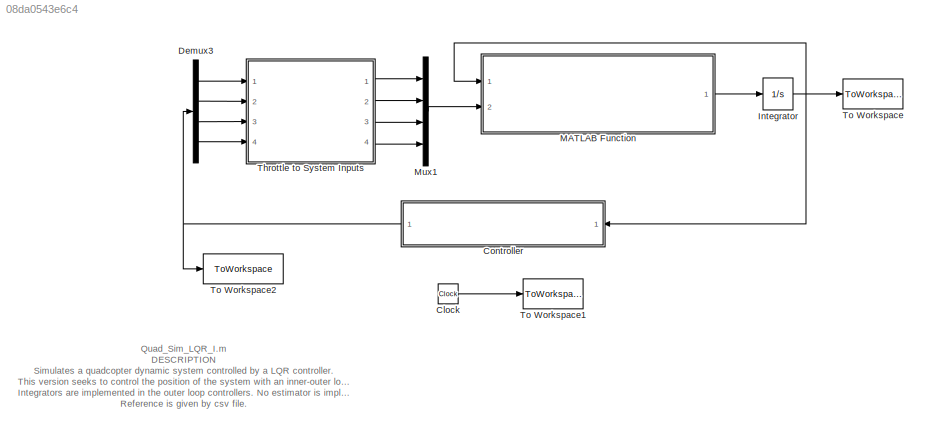
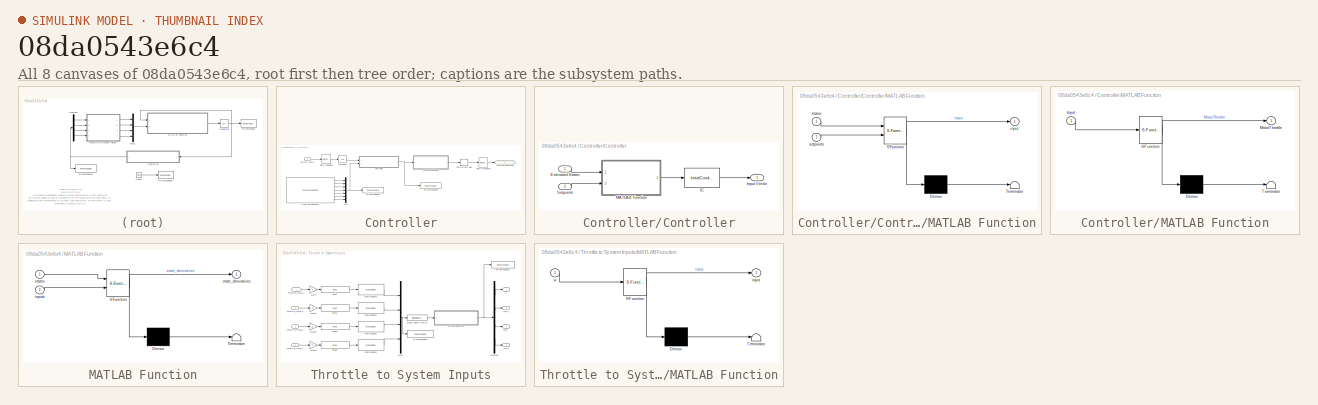
[diagram: thumbnail index - all 8 canvases of the model, root first then tree order]
MODEL slx_08da0543e6c4
KIND model
CONFIG AbsTol = auto
CONFIG EnableMultiTasking = off
CONFIG FixedStep = Ts
CONFIG MaxStep = auto
CONFIG MinStep = auto
CONFIG RelTol = 1e-3
CONFIG SampleTimeConstraint = Unconstrained
CONFIG SolverName = ode4
CONFIG StartTime = 0.0
CONFIG StopTime = Tfin
BLOCK [Clock] Clock
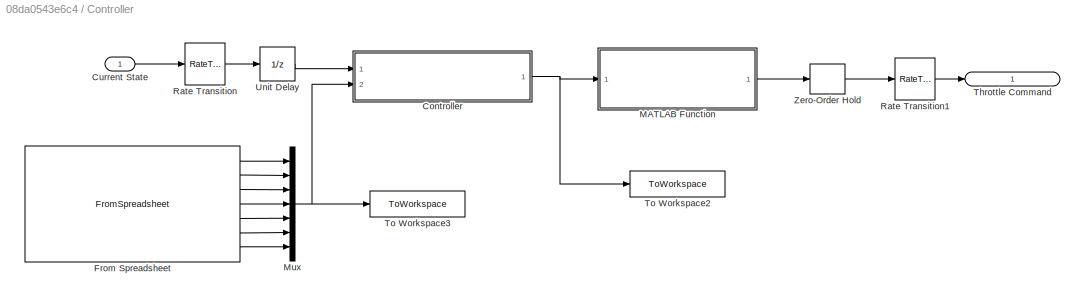
BLOCK [SubSystem] Controller
  Ports = [1, 1]
  RequestExecContextInheritance = off
BLOCK [SubSystem] Controller/Controller
  Ports = [2, 1]
  RequestExecContextInheritance = off
BLOCK [Inport] Controller/Controller/Estimated States
BLOCK [InitialCondition] Controller/Controller/IC
  Value = [0;0;m*g; 0; 0; 0]
BLOCK [Outport] Controller/Controller/Input Vector
  VectorParamsAs1DForOutWhenUnconnected = off
BLOCK [SubSystem] Controller/Controller/MATLAB Function
  ErrorFcn = Stateflow.Translate.translate
  PermitHierarchicalResolution = ExplicitOnly
  Ports = [2, 1]
  RequestExecContextInheritance = off
  SFBlockType = MATLAB Function
  TreatAsAtomicUnit = on
BLOCK [Demux] Controller/Controller/MATLAB Function/ Demux 
  Outputs = 1
  Ports = [1, 1]
BLOCK [S-Function] Controller/Controller/MATLAB Function/ SFunction 
  EnableBusSupport = on
  FunctionName = sf_sfun
  Parameters = KPhi,KPsi,KTheta,Kxx,Kyy,Kzz,Ts_ct,f_sat,g,m,phi_sat,tauI,taux_sat,tauy_sat,tauz_sat,theta_sat
  PortCounts = [2 2]
  Ports = [2, 2]
  SFcnIsStateOwnerBlock = off
  SFunctionDeploymentMode = off
  Tag = Stateflow S-Function 4
BLOCK [Terminator] Controller/Controller/MATLAB Function/ Terminator 
BLOCK [Outport] Controller/Controller/MATLAB Function/input
  VectorParamsAs1DForOutWhenUnconnected = off
BLOCK [Inport] Controller/Controller/MATLAB Function/setpoints
  Port = 2
BLOCK [Inport] Controller/Controller/MATLAB Function/states
BLOCK [Inport] Controller/Controller/Setpoints
  Port = 2
BLOCK [Inport] Controller/Current State
BLOCK [FromSpreadsheet] Controller/From Spreadsheet
  ExtrapolationAfterLastDataPoint = Hold last value
  ExtrapolationBeforeFirstDataPoint = Hold first value
  FileName = refTraj.csv
  InterpolationWithinTimeRange = Zero order hold
  OutDataTypeStr = double
  OutputAfterLastPoint = Hold final value
  Ports = [0, 7]
  SampleTime = Ts_ct
  SheetName = refTraj
  TreatFirstColumnAs = Data
BLOCK [SubSystem] Controller/MATLAB Function
  ErrorFcn = Stateflow.Translate.translate
  PermitHierarchicalResolution = ExplicitOnly
  Ports = [1, 1]
  RequestExecContextInheritance = off
  SFBlockType = MATLAB Function
  TreatAsAtomicUnit = on
BLOCK [Demux] Controller/MATLAB Function/ Demux 
  Outputs = 1
  Ports = [1, 1]
BLOCK [S-Function] Controller/MATLAB Function/ SFunction 
  EnableBusSupport = on
  FunctionName = sf_sfun
  Parameters = CM,CT,Cr,omega_b,prop_dist
  PortCounts = [1 2]
  Ports = [1, 2]
  SFcnIsStateOwnerBlock = off
  SFunctionDeploymentMode = off
  Tag = Stateflow S-Function 3
BLOCK [Terminator] Controller/MATLAB Function/ Terminator 
BLOCK [Inport] Controller/MATLAB Function/Input
BLOCK [Outport] Controller/MATLAB Function/MotorThrottle
  VectorParamsAs1DForOutWhenUnconnected = off
BLOCK [Mux] Controller/Mux
  DisplayOption = bar
  Inputs = 7
  Ports = [7, 1]
BLOCK [RateTransition] Controller/Rate Transition
  InitialCondition = x0
BLOCK [RateTransition] Controller/Rate Transition1
  InitialCondition = Th_init_vec
BLOCK [Outport] Controller/Throttle Command
  VectorParamsAs1DForOutWhenUnconnected = off
BLOCK [ToWorkspace] Controller/To Workspace2
  FixptAsFi = on
  MaxDataPoints = inf
  Ports = [1]
  SampleTime = Ts
  Save2DSignal = 2-D array (concatenate along first dimension)
  VariableName = Controller_Input
BLOCK [ToWorkspace] Controller/To Workspace3
  FixptAsFi = on
  MaxDataPoints = inf
  Ports = [1]
  SampleTime = Ts
  Save2DSignal = 2-D array (concatenate along first dimension)
  VariableName = Reference
BLOCK [UnitDelay] Controller/Unit Delay
  HasFrameUpgradeWarning = on
  InitialCondition = x0
  SampleTime = Ts_ct
BLOCK [ZeroOrderHold] Controller/Zero-Order Hold
  SampleTime = Ts_ct
BLOCK [Demux] Demux3
  Ports = [1, 4]
BLOCK [Integrator] Integrator
  InitialCondition = x0
  Ports = [1, 1]
BLOCK [SubSystem] MATLAB Function
  ErrorFcn = Stateflow.Translate.translate
  PermitHierarchicalResolution = ExplicitOnly
  Ports = [2, 1]
  RequestExecContextInheritance = off
  SFBlockType = MATLAB Function
  TreatAsAtomicUnit = on
BLOCK [Demux] MATLAB Function/ Demux 
  Outputs = 1
  Ports = [1, 1]
BLOCK [S-Function] MATLAB Function/ SFunction 
  EnableBusSupport = on
  FunctionName = sf_sfun
  Parameters = Jxx,Jyy,Jzz,g,m
  PortCounts = [2 2]
  Ports = [2, 2]
  SFcnIsStateOwnerBlock = off
  SFunctionDeploymentMode = off
  Tag = Stateflow S-Function 2
BLOCK [Terminator] MATLAB Function/ Terminator 
BLOCK [Inport] MATLAB Function/inputs
  Port = 2
BLOCK [Outport] MATLAB Function/state_derivatives
  VectorParamsAs1DForOutWhenUnconnected = off
BLOCK [Inport] MATLAB Function/states
BLOCK [Mux] Mux1
  DisplayOption = bar
  Ports = [4, 1]
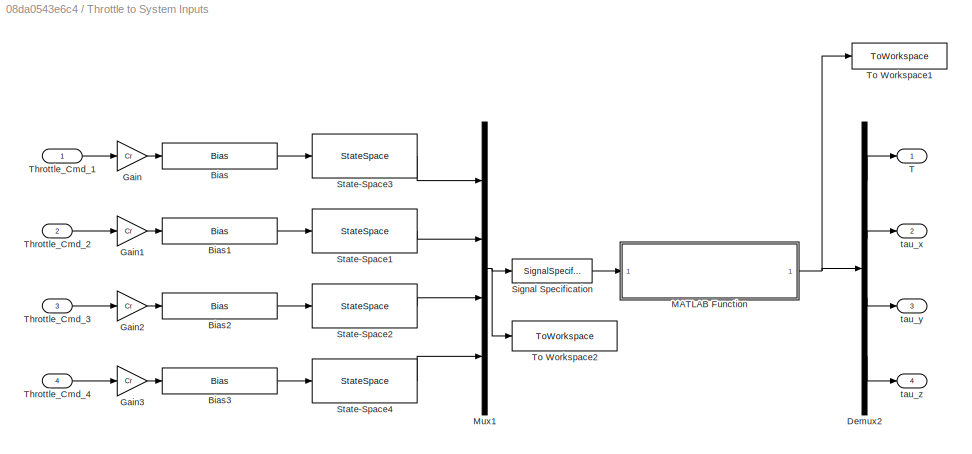
BLOCK [SubSystem] Throttle to System Inputs
  Ports = [4, 4]
  RequestExecContextInheritance = off
BLOCK [Bias] Throttle to System Inputs/Bias
  Bias = omega_b
  SaturateOnIntegerOverflow = off
BLOCK [Bias] Throttle to System Inputs/Bias1
  Bias = omega_b
  SaturateOnIntegerOverflow = off
BLOCK [Bias] Throttle to System Inputs/Bias2
  Bias = omega_b
  SaturateOnIntegerOverflow = off
BLOCK [Bias] Throttle to System Inputs/Bias3
  Bias = omega_b
  SaturateOnIntegerOverflow = off
BLOCK [Demux] Throttle to System Inputs/Demux2
  Ports = [1, 4]
BLOCK [Gain] Throttle to System Inputs/Gain
  Gain = Cr
BLOCK [Gain] Throttle to System Inputs/Gain1
  Gain = Cr
BLOCK [Gain] Throttle to System Inputs/Gain2
  Gain = Cr
BLOCK [Gain] Throttle to System Inputs/Gain3
  Gain = Cr
BLOCK [SubSystem] Throttle to System Inputs/MATLAB Function
  ErrorFcn = Stateflow.Translate.translate
  PermitHierarchicalResolution = ExplicitOnly
  Ports = [1, 1]
  RequestExecContextInheritance = off
  SFBlockType = MATLAB Function
  TreatAsAtomicUnit = on
BLOCK [Demux] Throttle to System Inputs/MATLAB Function/ Demux 
  Outputs = 1
  Ports = [1, 1]
BLOCK [S-Function] Throttle to System Inputs/MATLAB Function/ SFunction 
  EnableBusSupport = on
  FunctionName = sf_sfun
  Parameters = CM,CT,prop_dist
  PortCounts = [1 2]
  Ports = [1, 2]
  SFcnIsStateOwnerBlock = off
  SFunctionDeploymentMode = off
  Tag = Stateflow S-Function 1
BLOCK [Terminator] Throttle to System Inputs/MATLAB Function/ Terminator 
BLOCK [Outport] Throttle to System Inputs/MATLAB Function/input
  VectorParamsAs1DForOutWhenUnconnected = off
BLOCK [Inport] Throttle to System Inputs/MATLAB Function/w
BLOCK [Mux] Throttle to System Inputs/Mux1
  DisplayOption = bar
  Ports = [4, 1]
BLOCK [SignalSpecification] Throttle to System Inputs/Signal Specification
  Dimensions = [4, 1]
BLOCK [StateSpace] Throttle to System Inputs/State-Space1
  A = -1/Tm
  C = 1/Tm
  D = 0
  InitialCondition = Tm*sqrt(m*g/(4*CT))
  Ports = [1, 1]
BLOCK [StateSpace] Throttle to System Inputs/State-Space2
  A = -1/Tm
  C = 1/Tm
  D = 0
  InitialCondition = Tm*sqrt(m*g/(4*CT))
  Ports = [1, 1]
BLOCK [StateSpace] Throttle to System Inputs/State-Space3
  A = -1/Tm
  C = 1/Tm
  D = 0
  InitialCondition = Tm*sqrt(m*g/(4*CT))
  Ports = [1, 1]
BLOCK [StateSpace] Throttle to System Inputs/State-Space4
  A = -1/Tm
  C = 1/Tm
  D = 0
  InitialCondition = Tm*sqrt(m*g/(4*CT))
  Ports = [1, 1]
BLOCK [Outport] Throttle to System Inputs/T
  VectorParamsAs1DForOutWhenUnconnected = off
BLOCK [Inport] Throttle to System Inputs/Throttle_Cmd_1
BLOCK [Inport] Throttle to System Inputs/Throttle_Cmd_2
  Port = 2
BLOCK [Inport] Throttle to System Inputs/Throttle_Cmd_3
  Port = 3
BLOCK [Inport] Throttle to System Inputs/Throttle_Cmd_4
  Port = 4
BLOCK [ToWorkspace] Throttle to System Inputs/To Workspace1
  FixptAsFi = on
  MaxDataPoints = inf
  Ports = [1]
  SampleTime = -1
  Save2DSignal = 2-D array (concatenate along first dimension)
  VariableName = System_Input
BLOCK [ToWorkspace] Throttle to System Inputs/To Workspace2
  FixptAsFi = on
  MaxDataPoints = inf
  Ports = [1]
  SampleTime = -1
  Save2DSignal = 2-D array (concatenate along first dimension)
  VariableName = Motor_Rotation_Rates
BLOCK [Outport] Throttle to System Inputs/tau_x
  Port = 2
  VectorParamsAs1DForOutWhenUnconnected = off
BLOCK [Outport] Throttle to System Inputs/tau_y
  Port = 3
  VectorParamsAs1DForOutWhenUnconnected = off
BLOCK [Outport] Throttle to System Inputs/tau_z
  Port = 4
  VectorParamsAs1DForOutWhenUnconnected = off
BLOCK [ToWorkspace] To Workspace
  FixptAsFi = on
  MaxDataPoints = inf
  Ports = [1]
  SampleTime = -1
  Save2DSignal = 2-D array (concatenate along first dimension)
  VariableName = States
BLOCK [ToWorkspace] To Workspace1
  FixptAsFi = on
  MaxDataPoints = inf
  Ports = [1]
  SampleTime = -1
  VariableName = Time
BLOCK [ToWorkspace] To Workspace2
  FixptAsFi = on
  MaxDataPoints = inf
  Ports = [1]
  SampleTime = -1
  Save2DSignal = 2-D array (concatenate along first dimension)
  VariableName = PWM_commands
ANNOTATION (root): Quad_Sim_LQR_I.m D ESCRIPTION Simulates a quadcopter dynamic system controlled by a LQR controller. This version seeks to control the position of the system with an inner-outer loop architecture. Integrators are implemented in the outer loop controllers. No estimator is implemented in this simulation. Reference is given by csv file. A UTHOR(S) : Juan Paredes E MAIL(S) : <email>, <email> D ATE CREA...<+221ch>
LINE Clock:1 -> To Workspace1:1
LINE Controller/Controller/Estimated States:1 -> Controller/Controller/MATLAB Function:1
LINE Controller/Controller/IC:1 -> Controller/Controller/Input Vector:1
LINE Controller/Controller/MATLAB Function:1 -> Controller/Controller/IC:1
LINE Controller/Controller/Setpoints:1 -> Controller/Controller/MATLAB Function:2
NET Controller/Controller:1 -> Controller/MATLAB Function:1, Controller/To Workspace2:1
LINE Controller/Current State:1 -> Controller/Rate Transition:1
LINE Controller/From Spreadsheet:1 -> Controller/Mux:1
LINE Controller/From Spreadsheet:2 -> Controller/Mux:2
LINE Controller/From Spreadsheet:3 -> Controller/Mux:3
LINE Controller/From Spreadsheet:4 -> Controller/Mux:4
LINE Controller/From Spreadsheet:5 -> Controller/Mux:5
LINE Controller/From Spreadsheet:6 -> Controller/Mux:6
LINE Controller/From Spreadsheet:7 -> Controller/Mux:7
LINE Controller/MATLAB Function:1 -> Controller/Zero-Order Hold:1
NET Controller/Mux:1 -> Controller/Controller:2, Controller/To Workspace3:1
LINE Controller/Rate Transition1:1 -> Controller/Throttle Command:1
LINE Controller/Rate Transition:1 -> Controller/Unit Delay:1
LINE Controller/Unit Delay:1 -> Controller/Controller:1
LINE Controller/Zero-Order Hold:1 -> Controller/Rate Transition1:1
NET Controller:1 -> Demux3:1, To Workspace2:1
LINE Demux3:1 -> Throttle to System Inputs:1
LINE Demux3:2 -> Throttle to System Inputs:2
LINE Demux3:3 -> Throttle to System Inputs:3
LINE Demux3:4 -> Throttle to System Inputs:4
NET Integrator:1 -> Controller:1, MATLAB Function:1, To Workspace:1
LINE MATLAB Function:1 -> Integrator:1
LINE Mux1:1 -> MATLAB Function:2
LINE Throttle to System Inputs/Bias1:1 -> Throttle to System Inputs/State-Space1:1
LINE Throttle to System Inputs/Bias2:1 -> Throttle to System Inputs/State-Space2:1
LINE Throttle to System Inputs/Bias3:1 -> Throttle to System Inputs/State-Space4:1
LINE Throttle to System Inputs/Bias:1 -> Throttle to System Inputs/State-Space3:1
LINE Throttle to System Inputs/Demux2:1 -> Throttle to System Inputs/T:1
LINE Throttle to System Inputs/Demux2:2 -> Throttle to System Inputs/tau_x:1
LINE Throttle to System Inputs/Demux2:3 -> Throttle to System Inputs/tau_y:1
LINE Throttle to System Inputs/Demux2:4 -> Throttle to System Inputs/tau_z:1
LINE Throttle to System Inputs/Gain1:1 -> Throttle to System Inputs/Bias1:1
LINE Throttle to System Inputs/Gain2:1 -> Throttle to System Inputs/Bias2:1
LINE Throttle to System Inputs/Gain3:1 -> Throttle to System Inputs/Bias3:1
LINE Throttle to System Inputs/Gain:1 -> Throttle to System Inputs/Bias:1
NET Throttle to System Inputs/MATLAB Function:1 -> Throttle to System Inputs/Demux2:1, Throttle to System Inputs/To Workspace1:1
NET Throttle to System Inputs/Mux1:1 -> Throttle to System Inputs/Signal Specification:1, Throttle to System Inputs/To Workspace2:1
LINE Throttle to System Inputs/Signal Specification:1 -> Throttle to System Inputs/MATLAB Function:1
LINE Throttle to System Inputs/State-Space1:1 -> Throttle to System Inputs/Mux1:2
LINE Throttle to System Inputs/State-Space2:1 -> Throttle to System Inputs/Mux1:3
LINE Throttle to System Inputs/State-Space3:1 -> Throttle to System Inputs/Mux1:1
LINE Throttle to System Inputs/State-Space4:1 -> Throttle to System Inputs/Mux1:4
LINE Throttle to System Inputs/Throttle_Cmd_1:1 -> Throttle to System Inputs/Gain:1
LINE Throttle to System Inputs/Throttle_Cmd_2:1 -> Throttle to System Inputs/Gain1:1
LINE Throttle to System Inputs/Throttle_Cmd_3:1 -> Throttle to System Inputs/Gain2:1
LINE Throttle to System Inputs/Throttle_Cmd_4:1 -> Throttle to System Inputs/Gain3:1
LINE Throttle to System Inputs:1 -> Mux1:1
LINE Throttle to System Inputs:2 -> Mux1:2
LINE Throttle to System Inputs:3 -> Mux1:3
LINE Throttle to System Inputs:4 -> Mux1:4
note: NET lines group one-source signal fan-out (src -> all destinations, sorted); 1:1 wires keep LINE
CHART Throttle to System Inputs/MATLAB Function states=1 transitions=1
  STATE_LABEL 'eML_blk_kernel()'
  STATE_LABEL 'SCRIPT:\nfunction input = rotationalRateToControlInputs(w, prop_dist, CT, CM)\n\nsq_d_CT = (sqrt(2)/2)*prop_dist*CT;\n\ninput = [CT, CT, CT, CT;...\n    -sq_d_CT, -sq_d_CT, sq_d_CT, sq_d_CT;...\n    sq_d_CT, -sq_d_CT, -sq_d_CT, sq_d_CT;...\n    CM, -CM, CM, -CM]*(w.^2);\n'
CHART MATLAB Function states=1 transitions=1
  STATE_LABEL 'eML_blk_kernel()'
  STATE_LABEL 'SCRIPT:\nfunction state_derivatives = Quadcopter_Dynamics(states, inputs, m, Jxx, Jyy, Jzz, g)\n\n%States: X, Y, Z, Xdot, Ydot, Zdot, phi, theta, psi, Body Pitch Rate, Body Roll Rate, Body Yaw Rate\n\n%Inputs: Total thrust T, 3D Torque (tauX, tauY, tauZ)\n\n%3D position with respect to inertial coordinate frame\nx = states(1);\ny = states(2);\nz = states(3);\n\n%3D velocities with respect to inertial coordina...<+1482ch>'
CHART Controller/MATLAB Function states=1 transitions=1
  STATE_LABEL 'eML_blk_kernel()'
  STATE_LABEL 'SCRIPT:\nfunction MotorThrottle = InputToMotorThrottle(Input, prop_dist, CT, CM, Cr, omega_b)\n\nsq_d_CT = sqrt(2)/(4*prop_dist*CT);\nCT_var = 1/(4*CT);\nCM_var = 1/(4*CM);\n\nInput_u = Input(3:6);\n\nomega_des_sq = [CT_var -sq_d_CT sq_d_CT CM_var;...\n    CT_var -sq_d_CT -sq_d_CT -CM_var;...\n    CT_var sq_d_CT -sq_d_CT CM_var;...\n    CT_var sq_d_CT sq_d_CT -CM_var]*Input_u;\n\nomega_des_sq = min(max(omega_de...<+125ch>'
CHART Controller/Controller/MATLAB Function states=1 transitions=1
  STATE_LABEL 'eML_blk_kernel()'
  STATE_LABEL 'SCRIPT:\nfunction input = LQRController(states, setpoints, Kxx, Kyy, Kzz, KPsi, KPhi, KTheta, m, g, tauI, theta_sat, phi_sat, f_sat, taux_sat, tauy_sat, tauz_sat, Ts_ct)\n\npersistent xI\npersistent yI\npersistent zI\npersistent psiI\n\npersistent x_prev\npersistent y_prev\npersistent z_prev\npersistent psi_prev\n\npersistent x_int_res\npersistent y_int_res\npersistent z_int_res\npersistent psi_int_res\n\nif isempt...<+2635ch>'
CHART  states=0 transitions=0
CHART  states=0 transitions=0
CHART  states=0 transitions=0
CHART  states=0 transitions=0
